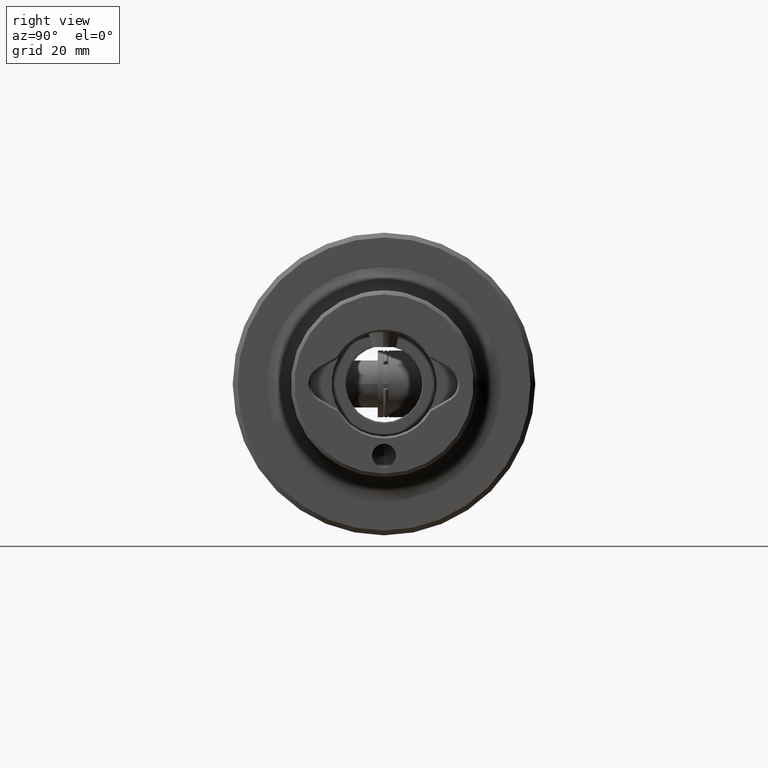
[diagram: clean part render]
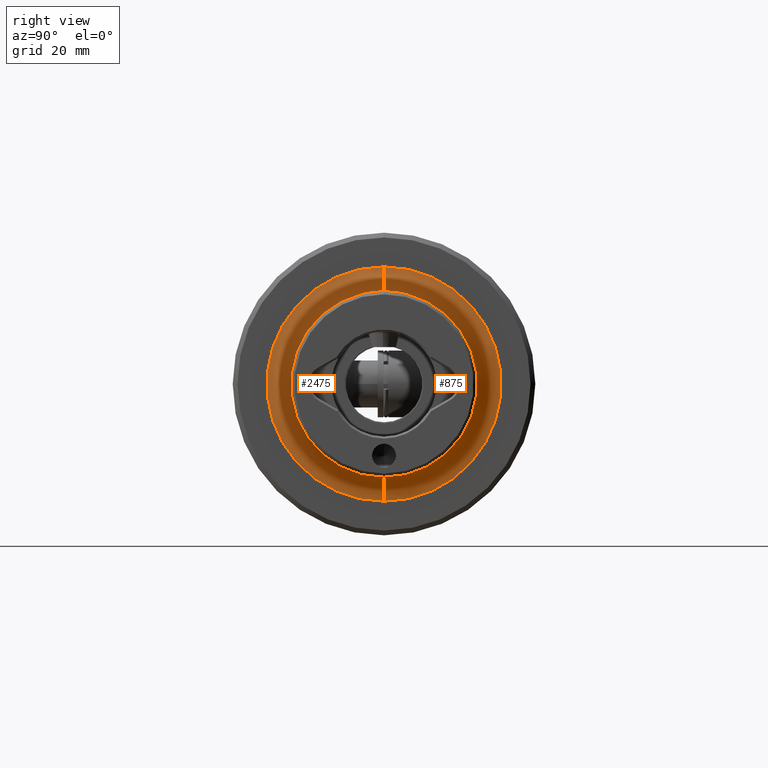
[diagram: same view with one multi-face feature highlighted, each face labeled with its STEP entity id]
A machine part, right view. The highlighted faces form ONE feature: a constant-radius fillet chain: 2 tangent blend faces with common blend radius 5 mm. The faces share edges in the B-rep.
Their STEP definitions:
[1] entity #2475 (Torus):
#47 = AXIS2_PLACEMENT_3D ( 'NONE', #1334, #2546, #4199 ) ;
#71 = CIRCLE ( 'NONE', #4714, 5.000000000000000900 ) ;
#158 = CARTESIAN_POINT ( 'NONE',  ( 52.00000000000000700, 3.000384657911015500E-015, -24.50000000000000000 ) ) ;
#335 = DIRECTION ( 'NONE',  ( 0.0000000000000000000, 0.0000000000000000000, 1.000000000000000000 ) ) ;
#462 = CIRCLE ( 'NONE', #4176, 5.000000000000000900 ) ;
#824 = ORIENTED_EDGE ( 'NONE', *, *, #4726, .F. ) ;
#1334 = CARTESIAN_POINT ( 'NONE',  ( 56.99999999999999300, 0.0000000000000000000, 0.0000000000000000000 ) ) ;
#1381 = CARTESIAN_POINT ( 'NONE',  ( 52.00000000000000700, 0.0000000000000000000, 0.0000000000000000000 ) ) ;
#1671 = TOROIDAL_SURFACE ( 'NONE', #47, 24.50000000000000000, 5.000000000000000000 ) ;
#1773 = EDGE_CURVE ( 'NONE', #3059, #3277, #462, .T. ) ;
#1782 = DIRECTION ( 'NONE',  ( 0.0000000000000000000, 0.0000000000000000000, 1.000000000000000000 ) ) ;
#2127 = EDGE_CURVE ( 'NONE', #3059, #2219, #4745, .T. ) ;
#2215 = CARTESIAN_POINT ( 'NONE',  ( 56.99999999999999300, 3.000384657911015500E-015, -24.50000000000000000 ) ) ;
#2219 = VERTEX_POINT ( 'NONE', #5242 ) ;
#2286 = CARTESIAN_POINT ( 'NONE',  ( 56.99999999999999300, 0.0000000000000000000, 24.50000000000000000 ) ) ;
#2475 = ADVANCED_FACE ( 'NONE', ( #3716 ), #1671, .F. ) ;
#2546 = DIRECTION ( 'NONE',  ( -1.000000000000000000, -0.0000000000000000000, -0.0000000000000000000 ) ) ;
#2622 = DIRECTION ( 'NONE',  ( 0.0000000000000000000, -1.224646799147353500E-016, 1.000000000000000000 ) ) ;
#2667 = AXIS2_PLACEMENT_3D ( 'NONE', #5240, #2785, #335 ) ;
#2699 = DIRECTION ( 'NONE',  ( 0.0000000000000000000, 0.0000000000000000000, -1.000000000000000000 ) ) ;
#2754 = CARTESIAN_POINT ( 'NONE',  ( 56.99999999999999300, 2.388061258337338900E-015, -19.50000000000000000 ) ) ;
#2785 = DIRECTION ( 'NONE',  ( 1.000000000000000000, 0.0000000000000000000, 0.0000000000000000000 ) ) ;
#2904 = ORIENTED_EDGE ( 'NONE', *, *, #1773, .T. ) ;
#2974 = VERTEX_POINT ( 'NONE', #4193 ) ;
#3059 = VERTEX_POINT ( 'NONE', #158 ) ;
#3108 = ORIENTED_EDGE ( 'NONE', *, *, #3809, .F. ) ;
#3277 = VERTEX_POINT ( 'NONE', #2754 ) ;
#3716 = FACE_OUTER_BOUND ( 'NONE', #4638, .T. ) ;
#3809 = EDGE_CURVE ( 'NONE', #2219, #2974, #71, .T. ) ;
#4021 = ORIENTED_EDGE ( 'NONE', *, *, #2127, .F. ) ;
#4176 = AXIS2_PLACEMENT_3D ( 'NONE', #2215, #5073, #2622 ) ;
#4193 = CARTESIAN_POINT ( 'NONE',  ( 56.99999999999999300, 0.0000000000000000000, 19.50000000000000000 ) ) ;
#4199 = DIRECTION ( 'NONE',  ( 0.0000000000000000000, 0.0000000000000000000, 1.000000000000000000 ) ) ;
#4238 = DIRECTION ( 'NONE',  ( -1.000000000000000000, -0.0000000000000000000, -0.0000000000000000000 ) ) ;
#4638 = EDGE_LOOP ( 'NONE', ( #4021, #2904, #824, #3108 ) ) ;
#4714 = AXIS2_PLACEMENT_3D ( 'NONE', #2286, #5153, #2699 ) ;
#4726 = EDGE_CURVE ( 'NONE', #2974, #3277, #5208, .T. ) ;
#4745 = CIRCLE ( 'NONE', #4899, 24.50000000000000000 ) ;
#4899 = AXIS2_PLACEMENT_3D ( 'NONE', #1381, #4238, #1782 ) ;
#5073 = DIRECTION ( 'NONE',  ( -0.0000000000000000000, 1.000000000000000000, 1.224646799147353200E-016 ) ) ;
#5153 = DIRECTION ( 'NONE',  ( 0.0000000000000000000, -1.000000000000000000, 0.0000000000000000000 ) ) ;
#5208 = CIRCLE ( 'NONE', #2667, 19.50000000000000000 ) ;
#5240 = CARTESIAN_POINT ( 'NONE',  ( 56.99999999999999300, 0.0000000000000000000, 0.0000000000000000000 ) ) ;
#5242 = CARTESIAN_POINT ( 'NONE',  ( 52.00000000000000700, 0.0000000000000000000, 24.50000000000000000 ) ) ;
[2] entity #875 (Torus):
#71 = CIRCLE ( 'NONE', #4714, 5.000000000000000900 ) ;
#158 = CARTESIAN_POINT ( 'NONE',  ( 52.00000000000000700, 3.000384657911015500E-015, -24.50000000000000000 ) ) ;
#462 = CIRCLE ( 'NONE', #4176, 5.000000000000000900 ) ;
#750 = CARTESIAN_POINT ( 'NONE',  ( 56.99999999999999300, 0.0000000000000000000, 0.0000000000000000000 ) ) ;
#838 = ORIENTED_EDGE ( 'NONE', *, *, #3809, .T. ) ;
#858 = CARTESIAN_POINT ( 'NONE',  ( 52.00000000000000700, 0.0000000000000000000, 0.0000000000000000000 ) ) ;
#875 = ADVANCED_FACE ( 'NONE', ( #978 ), #4249, .F. ) ;
#934 = DIRECTION ( 'NONE',  ( 0.0000000000000000000, 0.0000000000000000000, 1.000000000000000000 ) ) ;
#978 = FACE_OUTER_BOUND ( 'NONE', #4214, .T. ) ;
#993 = ORIENTED_EDGE ( 'NONE', *, *, #1773, .F. ) ;
#1260 = DIRECTION ( 'NONE',  ( 0.0000000000000000000, 0.0000000000000000000, 1.000000000000000000 ) ) ;
#1755 = ORIENTED_EDGE ( 'NONE', *, *, #2341, .F. ) ;
#1773 = EDGE_CURVE ( 'NONE', #3059, #3277, #462, .T. ) ;
#2088 = ORIENTED_EDGE ( 'NONE', *, *, #3634, .F. ) ;
#2180 = CIRCLE ( 'NONE', #3301, 19.50000000000000000 ) ;
#2183 = CARTESIAN_POINT ( 'NONE',  ( 56.99999999999999300, 0.0000000000000000000, 0.0000000000000000000 ) ) ;
#2215 = CARTESIAN_POINT ( 'NONE',  ( 56.99999999999999300, 3.000384657911015500E-015, -24.50000000000000000 ) ) ;
#2219 = VERTEX_POINT ( 'NONE', #5242 ) ;
#2286 = CARTESIAN_POINT ( 'NONE',  ( 56.99999999999999300, 0.0000000000000000000, 24.50000000000000000 ) ) ;
#2341 = EDGE_CURVE ( 'NONE', #2219, #3059, #3160, .T. ) ;
#2594 = DIRECTION ( 'NONE',  ( 0.0000000000000000000, 0.0000000000000000000, 1.000000000000000000 ) ) ;
#2622 = DIRECTION ( 'NONE',  ( 0.0000000000000000000, -1.224646799147353500E-016, 1.000000000000000000 ) ) ;
#2699 = DIRECTION ( 'NONE',  ( 0.0000000000000000000, 0.0000000000000000000, -1.000000000000000000 ) ) ;
#2754 = CARTESIAN_POINT ( 'NONE',  ( 56.99999999999999300, 2.388061258337338900E-015, -19.50000000000000000 ) ) ;
#2974 = VERTEX_POINT ( 'NONE', #4193 ) ;
#3059 = VERTEX_POINT ( 'NONE', #158 ) ;
#3160 = CIRCLE ( 'NONE', #3165, 24.50000000000000000 ) ;
#3165 = AXIS2_PLACEMENT_3D ( 'NONE', #858, #3709, #1260 ) ;
#3277 = VERTEX_POINT ( 'NONE', #2754 ) ;
#3301 = AXIS2_PLACEMENT_3D ( 'NONE', #2183, #5048, #2594 ) ;
#3634 = EDGE_CURVE ( 'NONE', #3277, #2974, #2180, .T. ) ;
#3709 = DIRECTION ( 'NONE',  ( -1.000000000000000000, -0.0000000000000000000, -0.0000000000000000000 ) ) ;
#3809 = EDGE_CURVE ( 'NONE', #2219, #2974, #71, .T. ) ;
#4049 = AXIS2_PLACEMENT_3D ( 'NONE', #750, #4532, #934 ) ;
#4176 = AXIS2_PLACEMENT_3D ( 'NONE', #2215, #5073, #2622 ) ;
#4193 = CARTESIAN_POINT ( 'NONE',  ( 56.99999999999999300, 0.0000000000000000000, 19.50000000000000000 ) ) ;
#4214 = EDGE_LOOP ( 'NONE', ( #993, #1755, #838, #2088 ) ) ;
#4249 = TOROIDAL_SURFACE ( 'NONE', #4049, 24.50000000000000000, 5.000000000000000000 ) ;
#4532 = DIRECTION ( 'NONE',  ( -1.000000000000000000, -0.0000000000000000000, -0.0000000000000000000 ) ) ;
#4714 = AXIS2_PLACEMENT_3D ( 'NONE', #2286, #5153, #2699 ) ;
#5048 = DIRECTION ( 'NONE',  ( 1.000000000000000000, 0.0000000000000000000, 0.0000000000000000000 ) ) ;
#5073 = DIRECTION ( 'NONE',  ( -0.0000000000000000000, 1.000000000000000000, 1.224646799147353200E-016 ) ) ;
#5153 = DIRECTION ( 'NONE',  ( 0.0000000000000000000, -1.000000000000000000, 0.0000000000000000000 ) ) ;
#5242 = CARTESIAN_POINT ( 'NONE',  ( 52.00000000000000700, 0.0000000000000000000, 24.50000000000000000 ) ) ;